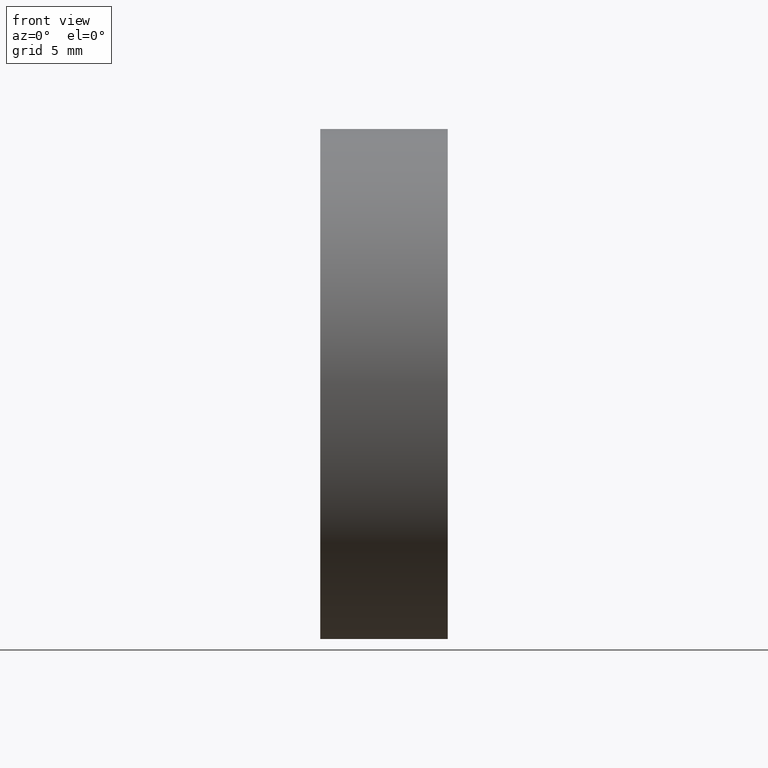
[diagram: clean part render]
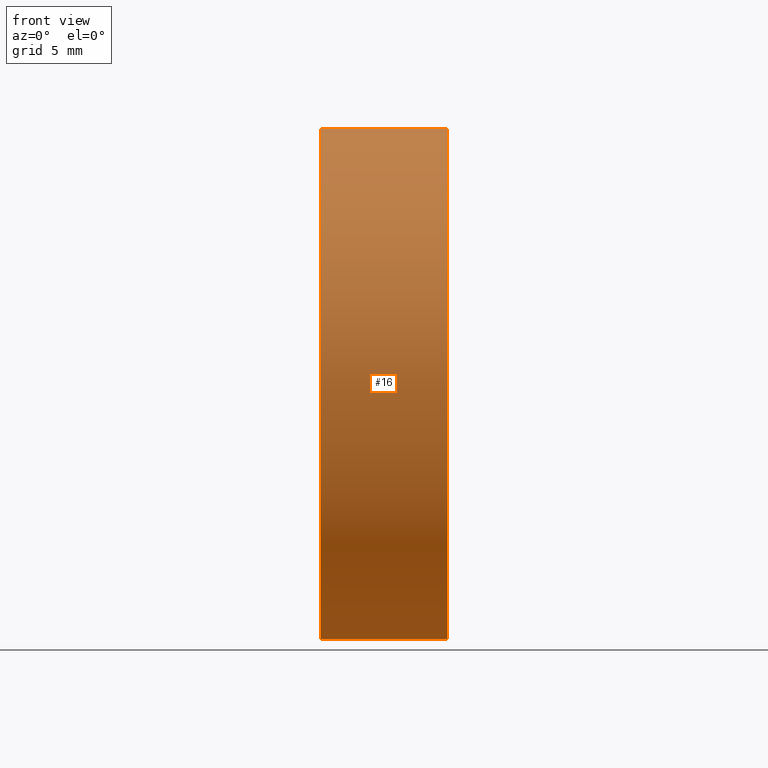
[diagram: same view with one face highlighted and labeled with its STEP entity id]
A machine part, front view. The second image highlights one B-rep face of the part: STEP entity #16.
In plain terms, the highlighted cylindrical surface (partial cylindrical patch) has radius 12.7 mm, axis along (-1, -0, -0).
Its self-contained STEP definition (entity closure, byte-faithful):
#1 = EDGE_LOOP ( 'NONE', ( #88, #76, #69, #152 ) ) ;
#11 = VERTEX_POINT ( 'NONE', #92 ) ;
#13 = EDGE_CURVE ( 'NONE', #135, #11, #155, .T. ) ;
#16 = ADVANCED_FACE ( 'NONE', ( #121 ), #82, .T. ) ;
#19 = CARTESIAN_POINT ( 'NONE',  ( 6.351316022859265300, 0.0000000000000000000, 0.0000000000000000000 ) ) ;
#29 = EDGE_CURVE ( 'NONE', #143, #49, #89, .T. ) ;
#34 = VECTOR ( 'NONE', #77, 1000.000000000000000 ) ;
#38 = AXIS2_PLACEMENT_3D ( 'NONE', #145, #43, #129 ) ;
#43 = DIRECTION ( 'NONE',  ( -1.000000000000000000, -0.0000000000000000000, -0.0000000000000000000 ) ) ;
#45 = AXIS2_PLACEMENT_3D ( 'NONE', #70, #59, #58 ) ;
#49 = VERTEX_POINT ( 'NONE', #80 ) ;
#55 = CARTESIAN_POINT ( 'NONE',  ( 0.0000000000000000000, 1.555301434917138400E-015, -12.69999999999999900 ) ) ;
#56 = EDGE_CURVE ( 'NONE', #143, #135, #109, .T. ) ;
#58 = DIRECTION ( 'NONE',  ( 0.0000000000000000000, 0.0000000000000000000, 1.000000000000000000 ) ) ;
#59 = DIRECTION ( 'NONE',  ( -1.000000000000000000, -0.0000000000000000000, -0.0000000000000000000 ) ) ;
#69 = ORIENTED_EDGE ( 'NONE', *, *, #160, .T. ) ;
#70 = CARTESIAN_POINT ( 'NONE',  ( 0.0000000000000000000, 0.0000000000000000000, 0.0000000000000000000 ) ) ;
#76 = ORIENTED_EDGE ( 'NONE', *, *, #29, .T. ) ;
#77 = DIRECTION ( 'NONE',  ( -1.000000000000000000, -0.0000000000000000000, -0.0000000000000000000 ) ) ;
#80 = CARTESIAN_POINT ( 'NONE',  ( 6.351316022859265300, 0.0000000000000000000, 12.70000000000013400 ) ) ;
#82 = CYLINDRICAL_SURFACE ( 'NONE', #45, 12.69999999999997100 ) ;
#88 = ORIENTED_EDGE ( 'NONE', *, *, #56, .F. ) ;
#89 = CIRCLE ( 'NONE', #122, 12.69999999999994200 ) ;
#92 = CARTESIAN_POINT ( 'NONE',  ( 0.0000000000000000000, 0.0000000000000000000, 12.69999999999999900 ) ) ;
#101 = CARTESIAN_POINT ( 'NONE',  ( 6.351316022859265300, 1.555301434917155200E-015, -12.70000000000013400 ) ) ;
#102 = DIRECTION ( 'NONE',  ( -1.000000000000000000, -0.0000000000000000000, -0.0000000000000000000 ) ) ;
#109 = LINE ( 'NONE', #141, #34 ) ;
#121 = FACE_OUTER_BOUND ( 'NONE', #1, .T. ) ;
#122 = AXIS2_PLACEMENT_3D ( 'NONE', #19, #102, #144 ) ;
#127 = VECTOR ( 'NONE', #133, 1000.000000000000000 ) ;
#129 = DIRECTION ( 'NONE',  ( 0.0000000000000000000, 0.0000000000000000000, 1.000000000000000000 ) ) ;
#133 = DIRECTION ( 'NONE',  ( -1.000000000000000000, -0.0000000000000000000, -0.0000000000000000000 ) ) ;
#135 = VERTEX_POINT ( 'NONE', #55 ) ;
#141 = CARTESIAN_POINT ( 'NONE',  ( 0.0000000000000000000, 1.555301434917135100E-015, -12.69999999999997100 ) ) ;
#143 = VERTEX_POINT ( 'NONE', #101 ) ;
#144 = DIRECTION ( 'NONE',  ( 0.0000000000000000000, 0.0000000000000000000, 1.000000000000000000 ) ) ;
#145 = CARTESIAN_POINT ( 'NONE',  ( 0.0000000000000000000, 0.0000000000000000000, 0.0000000000000000000 ) ) ;
#148 = CARTESIAN_POINT ( 'NONE',  ( 0.0000000000000000000, 0.0000000000000000000, 12.69999999999997100 ) ) ;
#152 = ORIENTED_EDGE ( 'NONE', *, *, #13, .F. ) ;
#155 = CIRCLE ( 'NONE', #38, 12.69999999999999900 ) ;
#160 = EDGE_CURVE ( 'NONE', #49, #11, #166, .T. ) ;
#166 = LINE ( 'NONE', #148, #127 ) ;